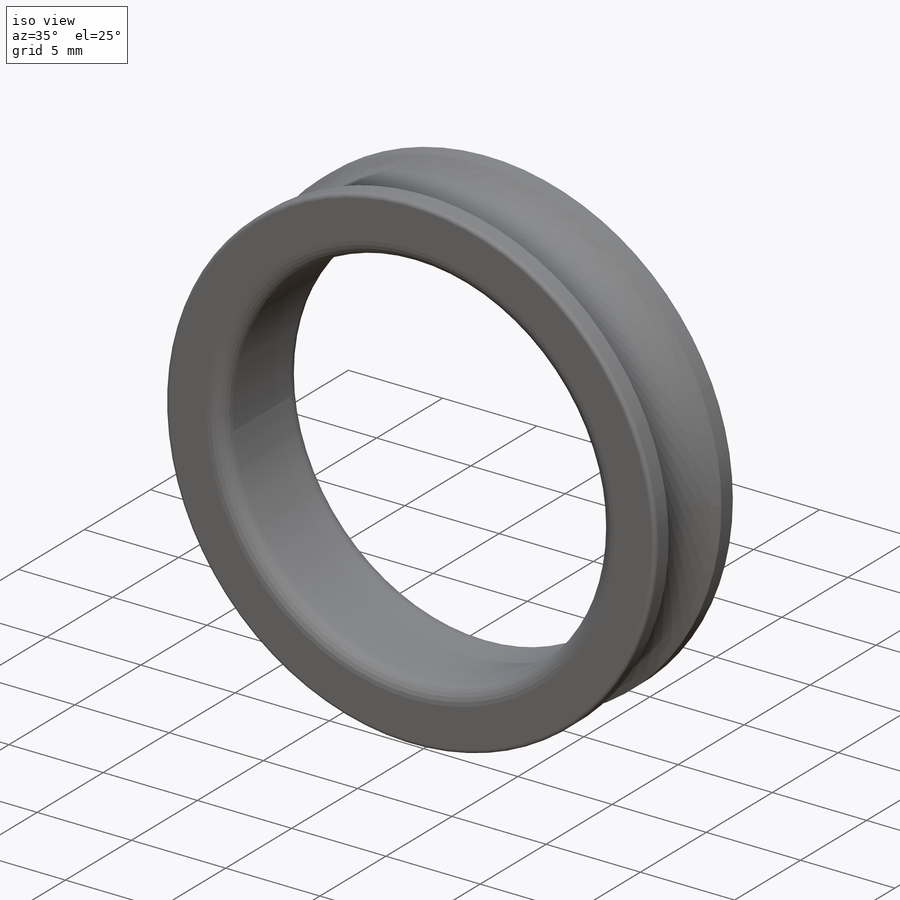
[diagram: iso view]
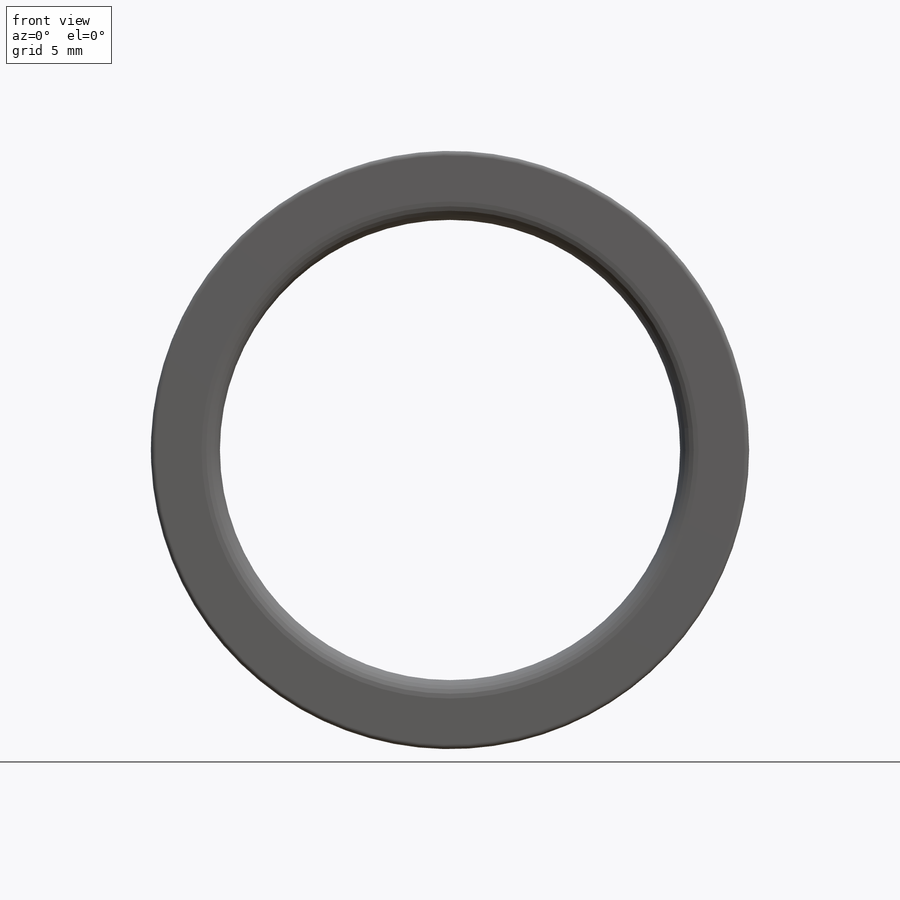
[diagram: front view]
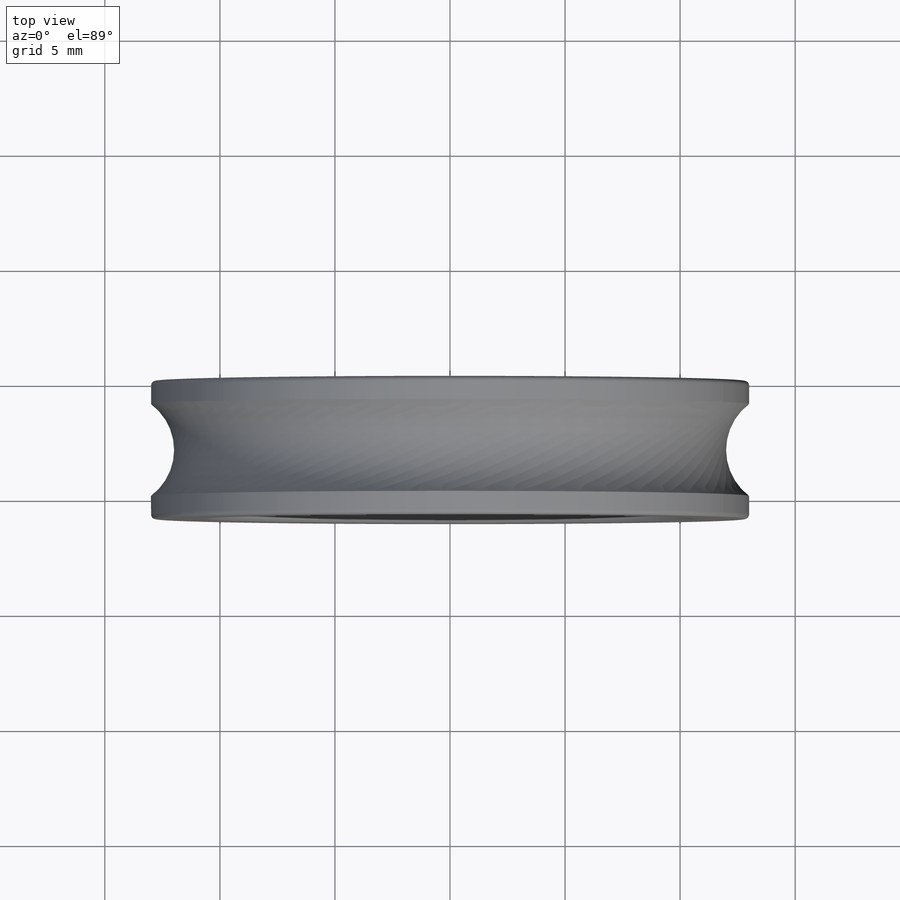
[diagram: top view]
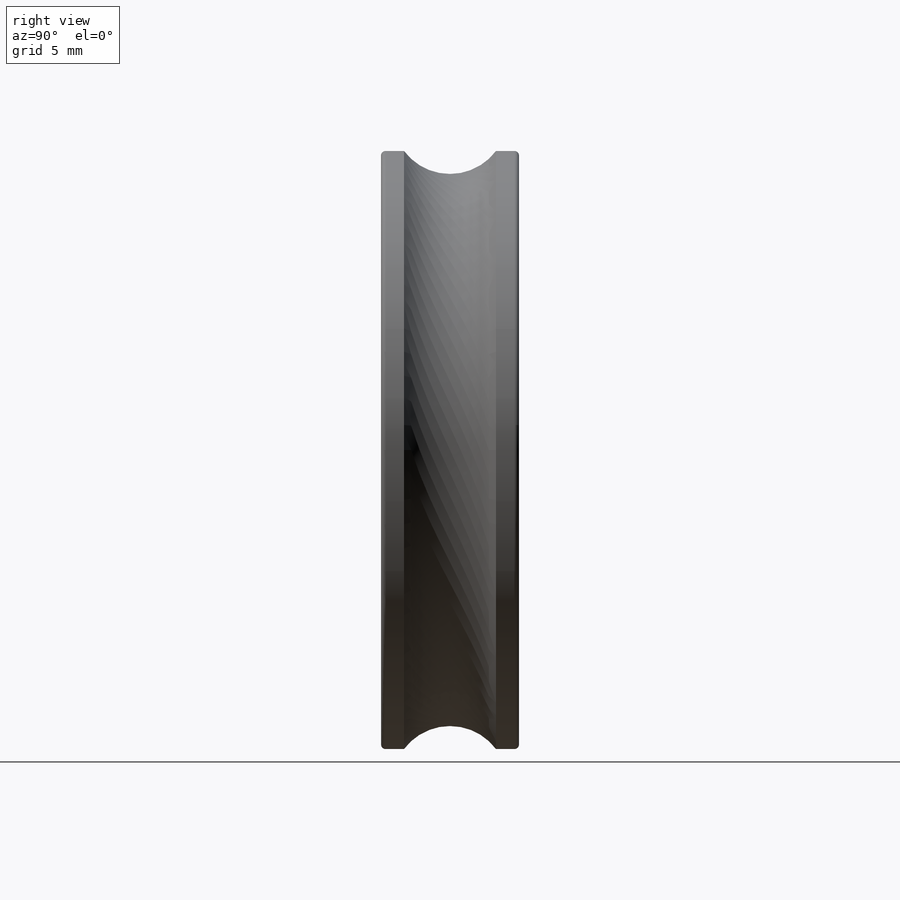
[diagram: right view]
SOLIDWORKS PART (.sldprt)
format: sldprt  version: not decoded by parser v0  size: 259,072 bytes
history: native  units: mm
features: plane x5, sketch x2, fillet x2, material x1, extrude x1 (+13 scaffold rows collapsed)
feature tree (24):
  scaffold x13  (default folders/planes/origin — collapsed)
  material  "材质 <未指定>"
  plane  "前视基准面"
  plane  "上视基准面"
  plane  "右视基准面"
  sketch  "草图1"  dims[D1=20.0mm D2=3.0mm]
  extrude  "凸台-拉伸1"  Depth=6mm
  sketch  "草图2"  dims[c1.D2=5.0mm c1.D1=1.5mm c1.D3=2.0mm c2.D1=360.0deg c3.D1=10.0mm c3.D2=0.0mm]
  fillet  "圆角1"  Radius=0.8mm
  fillet  "圆角2"  Radius=0.2mm
  plane  "基准面1"  Offset=3mm
  plane  "基准面2"  Offset=14.45mm
decode coverage: 5 of 5 modeling features carry decoded parameters
note: suppression state not decoded; provenance and decode notes live in map.json
